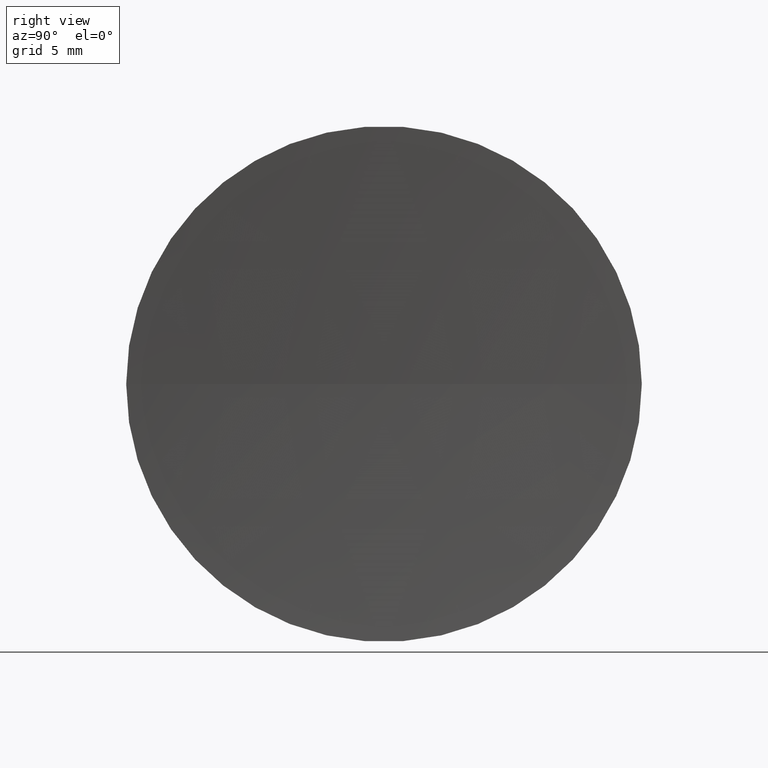
[diagram: clean part render]
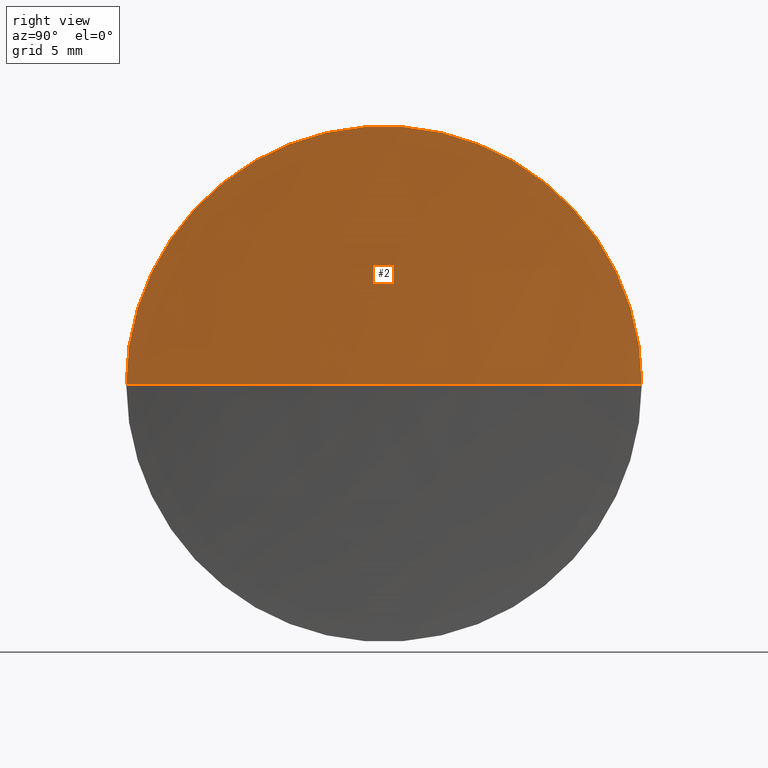
[diagram: same view with one face highlighted and labeled with its STEP entity id]
A machine part, right view. The second image highlights one B-rep face of the part: STEP entity #2.
In plain terms, the highlighted spherical surface has radius 236 mm.
Its self-contained STEP definition (entity closure, byte-faithful):
#2 = ADVANCED_FACE ( 'NONE', ( #181 ), #135, .F. ) ;
#9 = CIRCLE ( 'NONE', #182, 236.0000000000000000 ) ;
#10 = DIRECTION ( 'NONE',  ( 0.0000000000000000000, 1.000000000000000000, 1.224646799147353000E-016 ) ) ;
#26 = VERTEX_POINT ( 'NONE', #73 ) ;
#27 = AXIS2_PLACEMENT_3D ( 'NONE', #190, #75, #111 ) ;
#33 = ORIENTED_EDGE ( 'NONE', *, *, #74, .F. ) ;
#34 = VERTEX_POINT ( 'NONE', #189 ) ;
#43 = DIRECTION ( 'NONE',  ( -7.056502275159892200E-016, 1.000000000000000000, 0.0000000000000000000 ) ) ;
#44 = EDGE_CURVE ( 'NONE', #26, #34, #65, .T. ) ;
#49 = AXIS2_PLACEMENT_3D ( 'NONE', #123, #143, #10 ) ;
#65 = CIRCLE ( 'NONE', #49, 236.0000000000000600 ) ;
#73 = CARTESIAN_POINT ( 'NONE',  ( 127.9235157946422300, 46.19184047094010700, -2.329890535377837900E-015 ) ) ;
#74 = EDGE_CURVE ( 'NONE', #26, #122, #87, .T. ) ;
#75 = DIRECTION ( 'NONE',  ( -1.000000000000000000, -6.937607244762875000E-016, -0.0000000000000000000 ) ) ;
#87 = CIRCLE ( 'NONE', #27, 19.02499999999996700 ) ;
#95 = EDGE_CURVE ( 'NONE', #122, #34, #9, .T. ) ;
#97 = EDGE_LOOP ( 'NONE', ( #33, #105, #146 ) ) ;
#99 = CARTESIAN_POINT ( 'NONE',  ( 363.1554213155557700, 65.21684047094024100, 0.0000000000000000000 ) ) ;
#105 = ORIENTED_EDGE ( 'NONE', *, *, #44, .T. ) ;
#107 = CARTESIAN_POINT ( 'NONE',  ( 363.1554213155557700, 65.21684047094024100, 0.0000000000000000000 ) ) ;
#111 = DIRECTION ( 'NONE',  ( 0.0000000000000000000, -1.000000000000000000, 0.0000000000000000000 ) ) ;
#122 = VERTEX_POINT ( 'NONE', #160 ) ;
#123 = CARTESIAN_POINT ( 'NONE',  ( 363.1554213155557700, 65.21684047094024100, 0.0000000000000000000 ) ) ;
#128 = DIRECTION ( 'NONE',  ( 1.000000000000000000, 0.0000000000000000000, 0.0000000000000000000 ) ) ;
#135 = SPHERICAL_SURFACE ( 'NONE', #148, 236.0000000000000300 ) ;
#141 = DIRECTION ( 'NONE',  ( 0.0000000000000000000, 0.0000000000000000000, -1.000000000000000000 ) ) ;
#143 = DIRECTION ( 'NONE',  ( -8.496118506040342700E-032, 1.224646799147353200E-016, -1.000000000000000000 ) ) ;
#146 = ORIENTED_EDGE ( 'NONE', *, *, #95, .F. ) ;
#148 = AXIS2_PLACEMENT_3D ( 'NONE', #107, #141, #43 ) ;
#160 = CARTESIAN_POINT ( 'NONE',  ( 127.9235157946422300, 84.24184047094033200, 0.0000000000000000000 ) ) ;
#173 = DIRECTION ( 'NONE',  ( 0.0000000000000000000, -0.0000000000000000000, 1.000000000000000000 ) ) ;
#181 = FACE_OUTER_BOUND ( 'NONE', #97, .T. ) ;
#182 = AXIS2_PLACEMENT_3D ( 'NONE', #99, #173, #128 ) ;
#189 = CARTESIAN_POINT ( 'NONE',  ( 127.1554213155557700, 65.21684047094008500, 0.0000000000000000000 ) ) ;
#190 = CARTESIAN_POINT ( 'NONE',  ( 127.9235157946422300, 65.21684047094034000, 0.0000000000000000000 ) ) ;